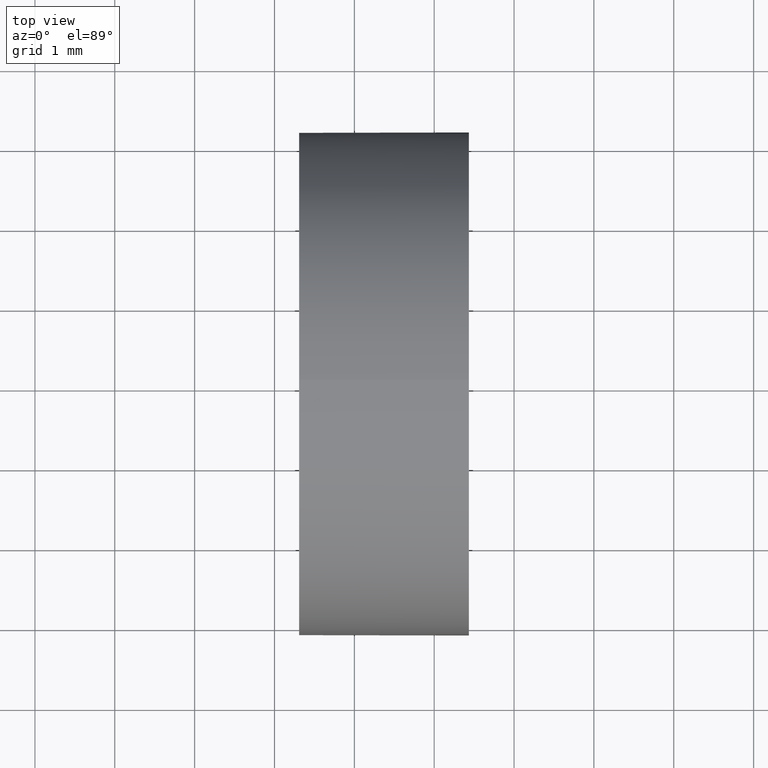
[diagram: clean part render]
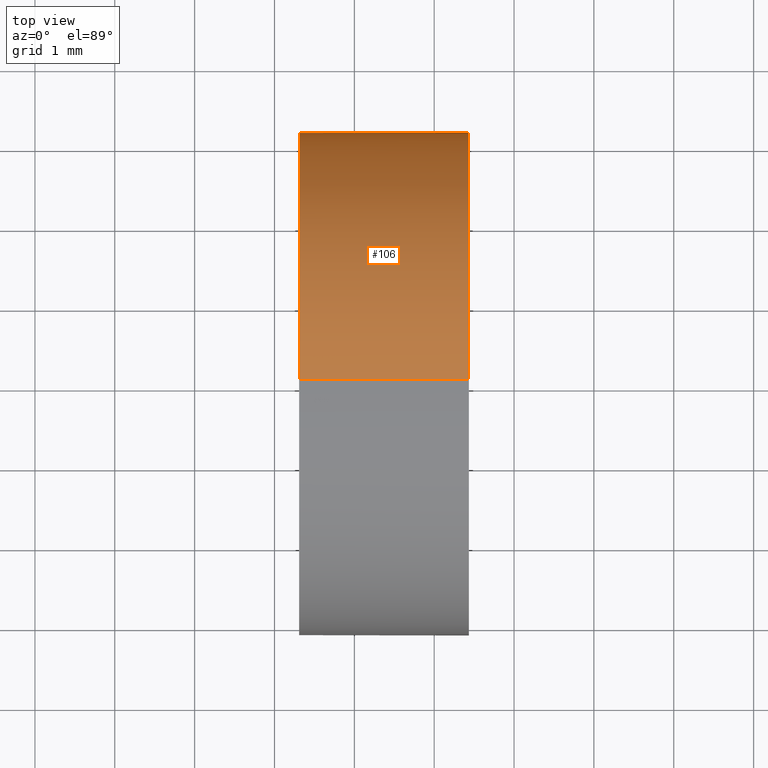
[diagram: same view with one face highlighted and labeled with its STEP entity id]
A machine part, top view. The second image highlights one B-rep face of the part: STEP entity #106.
In plain terms, the highlighted cylindrical surface (partial cylindrical patch) has radius 3.15 mm, axis along (-1, -0, -0).
Its self-contained STEP definition (entity closure, byte-faithful):
#1 = CIRCLE ( 'NONE', #183, 3.149999999999998100 ) ;
#6 = CIRCLE ( 'NONE', #115, 3.149999999999998100 ) ;
#7 = EDGE_CURVE ( 'NONE', #75, #162, #1, .T. ) ;
#8 = VERTEX_POINT ( 'NONE', #95 ) ;
#11 = CARTESIAN_POINT ( 'NONE',  ( 24.43349120354416800, 13.03112609140304000, 0.0000000000000000000 ) ) ;
#17 = EDGE_CURVE ( 'NONE', #45, #162, #158, .T. ) ;
#25 = DIRECTION ( 'NONE',  ( 0.0000000000000000000, 0.0000000000000000000, 1.000000000000000000 ) ) ;
#26 = LINE ( 'NONE', #127, #33 ) ;
#33 = VECTOR ( 'NONE', #167, 1000.000000000000000 ) ;
#38 = ORIENTED_EDGE ( 'NONE', *, *, #94, .T. ) ;
#39 = DIRECTION ( 'NONE',  ( -1.000000000000000000, -0.0000000000000000000, -0.0000000000000000000 ) ) ;
#41 = EDGE_CURVE ( 'NONE', #8, #45, #6, .T. ) ;
#45 = VERTEX_POINT ( 'NONE', #132 ) ;
#53 = DIRECTION ( 'NONE',  ( -1.000000000000000000, -0.0000000000000000000, -0.0000000000000000000 ) ) ;
#66 = CYLINDRICAL_SURFACE ( 'NONE', #141, 3.149999999999998100 ) ;
#68 = CARTESIAN_POINT ( 'NONE',  ( 20.68403063513288800, 13.03112609140304000, 0.0000000000000000000 ) ) ;
#70 = EDGE_LOOP ( 'NONE', ( #117, #166, #114, #92, #38 ) ) ;
#75 = VERTEX_POINT ( 'NONE', #111 ) ;
#80 = EDGE_CURVE ( 'NONE', #144, #75, #26, .T. ) ;
#86 = CARTESIAN_POINT ( 'NONE',  ( 24.43349120354416800, 13.03112609140304000, 0.0000000000000000000 ) ) ;
#92 = ORIENTED_EDGE ( 'NONE', *, *, #80, .F. ) ;
#94 = EDGE_CURVE ( 'NONE', #144, #8, #116, .T. ) ;
#95 = CARTESIAN_POINT ( 'NONE',  ( 24.43349120354416800, 16.18112609140303700, 3.857637417314160200E-016 ) ) ;
#98 = CARTESIAN_POINT ( 'NONE',  ( 22.30926883257449200, 13.03112609140304000, 0.0000000000000000000 ) ) ;
#102 = CARTESIAN_POINT ( 'NONE',  ( 22.30926883257449200, 13.03112609140304000, -3.149999999999998100 ) ) ;
#103 = DIRECTION ( 'NONE',  ( 0.0000000000000000000, 0.0000000000000000000, 1.000000000000000000 ) ) ;
#106 = ADVANCED_FACE ( 'NONE', ( #178 ), #66, .T. ) ;
#111 = CARTESIAN_POINT ( 'NONE',  ( 22.30926883257449200, 13.03112609140304000, 3.149999999999998100 ) ) ;
#112 = DIRECTION ( 'NONE',  ( -1.000000000000000000, -0.0000000000000000000, -0.0000000000000000000 ) ) ;
#113 = DIRECTION ( 'NONE',  ( 0.0000000000000000000, 0.0000000000000000000, 1.000000000000000000 ) ) ;
#114 = ORIENTED_EDGE ( 'NONE', *, *, #7, .F. ) ;
#115 = AXIS2_PLACEMENT_3D ( 'NONE', #11, #39, #113 ) ;
#116 = CIRCLE ( 'NONE', #131, 3.149999999999998100 ) ;
#117 = ORIENTED_EDGE ( 'NONE', *, *, #41, .T. ) ;
#122 = CARTESIAN_POINT ( 'NONE',  ( 20.68403063513288800, 13.03112609140304000, -3.149999999999998100 ) ) ;
#127 = CARTESIAN_POINT ( 'NONE',  ( 20.68403063513288800, 13.03112609140304000, 3.149999999999998100 ) ) ;
#131 = AXIS2_PLACEMENT_3D ( 'NONE', #86, #112, #25 ) ;
#132 = CARTESIAN_POINT ( 'NONE',  ( 24.43349120354416800, 13.03112609140304000, -3.149999999999998100 ) ) ;
#137 = DIRECTION ( 'NONE',  ( -1.000000000000000000, -0.0000000000000000000, -0.0000000000000000000 ) ) ;
#141 = AXIS2_PLACEMENT_3D ( 'NONE', #68, #154, #103 ) ;
#144 = VERTEX_POINT ( 'NONE', #169 ) ;
#154 = DIRECTION ( 'NONE',  ( -1.000000000000000000, -0.0000000000000000000, -0.0000000000000000000 ) ) ;
#158 = LINE ( 'NONE', #122, #161 ) ;
#161 = VECTOR ( 'NONE', #137, 1000.000000000000000 ) ;
#162 = VERTEX_POINT ( 'NONE', #102 ) ;
#166 = ORIENTED_EDGE ( 'NONE', *, *, #17, .T. ) ;
#167 = DIRECTION ( 'NONE',  ( -1.000000000000000000, -0.0000000000000000000, -0.0000000000000000000 ) ) ;
#169 = CARTESIAN_POINT ( 'NONE',  ( 24.43349120354416800, 13.03112609140304000, 3.149999999999998100 ) ) ;
#178 = FACE_OUTER_BOUND ( 'NONE', #70, .T. ) ;
#181 = DIRECTION ( 'NONE',  ( 0.0000000000000000000, 0.0000000000000000000, 1.000000000000000000 ) ) ;
#183 = AXIS2_PLACEMENT_3D ( 'NONE', #98, #53, #181 ) ;